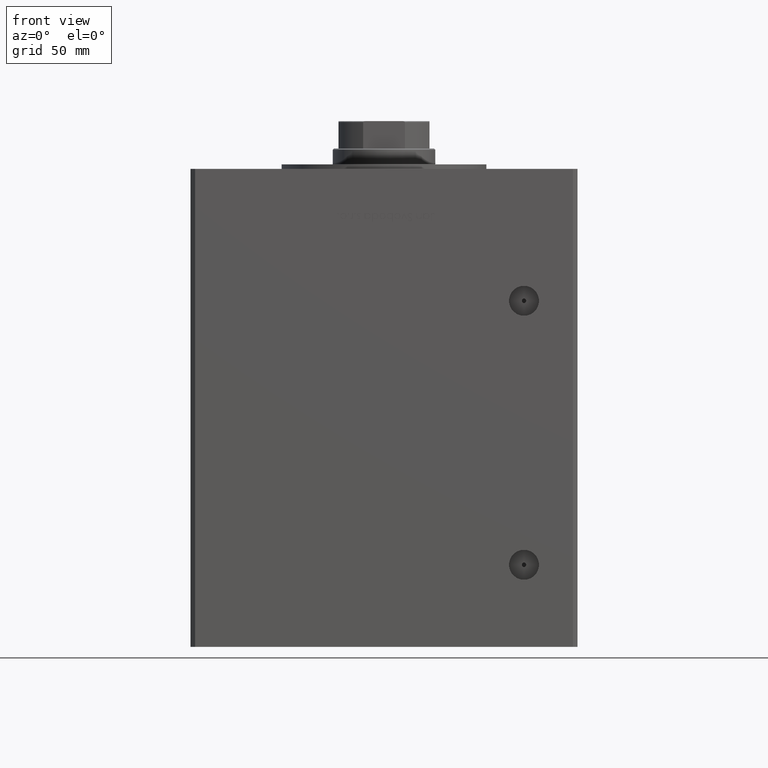
[diagram: clean part render]
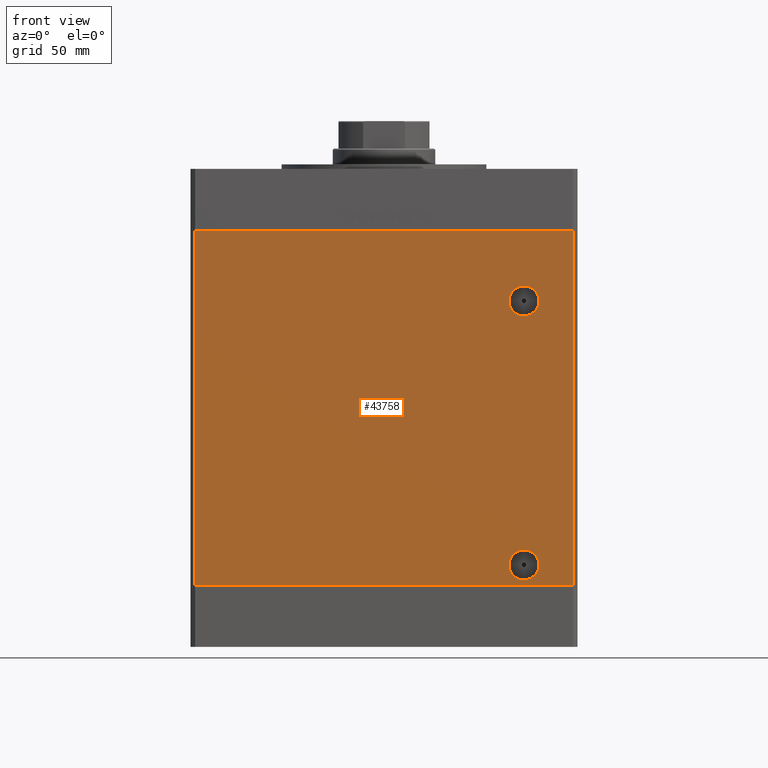
[diagram: same view with one face highlighted and labeled with its STEP entity id]
A machine part, front view. The second image highlights one B-rep face of the part: STEP entity #43758.
In plain terms, the highlighted planar face has unit normal (0, 1, 0).
Its self-contained STEP definition (entity closure, byte-faithful):
#397 = ORIENTED_EDGE ( 'NONE', *, *, #47307, .T. ) ;
#684 = CARTESIAN_POINT ( 'NONE',  ( -82.99999999999998579, -72.50000000000002842, 156.0000000000000000 ) ) ;
#1534 = CARTESIAN_POINT ( 'NONE',  ( 61.49999999999997868, -72.50000000000002842, 118.4200000000000159 ) ) ;
#2133 = CARTESIAN_POINT ( 'NONE',  ( -82.99999999999998579, -72.50000000000002842, 156.0000000000000000 ) ) ;
#2597 = EDGE_CURVE ( 'NONE', #51917, #20399, #12332, .T. ) ;
#3550 = CARTESIAN_POINT ( 'NONE',  ( 61.49999999999999289, -72.50000000000002842, 9.000000000000007105 ) ) ;
#4270 = CIRCLE ( 'NONE', #17726, 6.579999999999988525 ) ;
#4714 = DIRECTION ( 'NONE',  ( 0.000000000000000000, 0.000000000000000000, -1.000000000000000000 ) ) ;
#4985 = DIRECTION ( 'NONE',  ( -0.000000000000000000, 1.000000000000000000, -0.000000000000000000 ) ) ;
#6104 = VECTOR ( 'NONE', #20441, 1000.000000000000000 ) ;
#9159 = CARTESIAN_POINT ( 'NONE',  ( 82.99999999999998579, -72.50000000000002842, 156.0000000000000000 ) ) ;
#9516 = CIRCLE ( 'NONE', #38973, 6.579999999999994742 ) ;
#10164 = VECTOR ( 'NONE', #27906, 1000.000000000000000 ) ;
#10303 = EDGE_LOOP ( 'NONE', ( #397, #22168 ) ) ;
#10774 = FACE_BOUND ( 'NONE', #10303, .T. ) ;
#11469 = DIRECTION ( 'NONE',  ( 1.000000000000000000, 0.000000000000000000, 0.000000000000000000 ) ) ;
#12332 = LINE ( 'NONE', #24726, #10164 ) ;
#12574 = AXIS2_PLACEMENT_3D ( 'NONE', #18158, #49810, #14730 ) ;
#12982 = CARTESIAN_POINT ( 'NONE',  ( 61.49999999999999289, -72.50000000000002842, 15.58000000000000362 ) ) ;
#14730 = DIRECTION ( 'NONE',  ( 0.000000000000000000, -0.000000000000000000, 1.000000000000000000 ) ) ;
#15153 = VECTOR ( 'NONE', #26868, 1000.000000000000000 ) ;
#15927 = LINE ( 'NONE', #32271, #46041 ) ;
#17065 = CIRCLE ( 'NONE', #19595, 6.579999999999994742 ) ;
#17715 = VERTEX_POINT ( 'NONE', #48312 ) ;
#17726 = AXIS2_PLACEMENT_3D ( 'NONE', #38867, #43080, #50994 ) ;
#18158 = CARTESIAN_POINT ( 'NONE',  ( -82.99999999999998579, -72.50000000000002842, 156.0000000000000000 ) ) ;
#19238 = VERTEX_POINT ( 'NONE', #2133 ) ;
#19578 = EDGE_CURVE ( 'NONE', #34261, #20399, #15927, .T. ) ;
#19595 = AXIS2_PLACEMENT_3D ( 'NONE', #3550, #47281, #51767 ) ;
#20399 = VERTEX_POINT ( 'NONE', #48402 ) ;
#20441 = DIRECTION ( 'NONE',  ( 1.000000000000000000, 0.000000000000000000, 0.000000000000000000 ) ) ;
#20519 = ORIENTED_EDGE ( 'NONE', *, *, #19578, .T. ) ;
#21480 = ORIENTED_EDGE ( 'NONE', *, *, #41703, .F. ) ;
#22168 = ORIENTED_EDGE ( 'NONE', *, *, #33539, .T. ) ;
#24726 = CARTESIAN_POINT ( 'NONE',  ( 82.99999999999998579, -72.50000000000002842, 156.0000000000000000 ) ) ;
#24732 = DIRECTION ( 'NONE',  ( 0.000000000000000000, -1.000000000000000000, 0.000000000000000000 ) ) ;
#26074 = FACE_OUTER_BOUND ( 'NONE', #39864, .T. ) ;
#26868 = DIRECTION ( 'NONE',  ( -0.000000000000000000, -0.000000000000000000, -1.000000000000000000 ) ) ;
#27824 = ORIENTED_EDGE ( 'NONE', *, *, #40787, .F. ) ;
#27906 = DIRECTION ( 'NONE',  ( -0.000000000000000000, -0.000000000000000000, -1.000000000000000000 ) ) ;
#28969 = EDGE_CURVE ( 'NONE', #19238, #34261, #31346, .T. ) ;
#29433 = ORIENTED_EDGE ( 'NONE', *, *, #28969, .T. ) ;
#31153 = CARTESIAN_POINT ( 'NONE',  ( 61.49999999999999289, -72.50000000000002842, 2.420000000000013252 ) ) ;
#31346 = LINE ( 'NONE', #39254, #15153 ) ;
#31815 = VERTEX_POINT ( 'NONE', #1534 ) ;
#32271 = CARTESIAN_POINT ( 'NONE',  ( -82.99999999999998579, -72.50000000000002842, 0.000000000000000000 ) ) ;
#33539 = EDGE_CURVE ( 'NONE', #17715, #31815, #43778, .T. ) ;
#33666 = CARTESIAN_POINT ( 'NONE',  ( 61.49999999999999289, -72.50000000000002842, 9.000000000000007105 ) ) ;
#34261 = VERTEX_POINT ( 'NONE', #37092 ) ;
#34510 = AXIS2_PLACEMENT_3D ( 'NONE', #48716, #4985, #45295 ) ;
#35203 = EDGE_LOOP ( 'NONE', ( #27824, #21480 ) ) ;
#37092 = CARTESIAN_POINT ( 'NONE',  ( -82.99999999999998579, -72.50000000000002842, 0.000000000000000000 ) ) ;
#38200 = FACE_BOUND ( 'NONE', #35203, .T. ) ;
#38867 = CARTESIAN_POINT ( 'NONE',  ( 61.49999999999997868, -72.50000000000002842, 125.0000000000000000 ) ) ;
#38973 = AXIS2_PLACEMENT_3D ( 'NONE', #33666, #24732, #4714 ) ;
#38982 = PLANE ( 'NONE',  #12574 ) ;
#39254 = CARTESIAN_POINT ( 'NONE',  ( -82.99999999999998579, -72.50000000000002842, 156.0000000000000000 ) ) ;
#39864 = EDGE_LOOP ( 'NONE', ( #20519, #51479, #46165, #29433 ) ) ;
#40476 = EDGE_CURVE ( 'NONE', #19238, #51917, #44959, .T. ) ;
#40787 = EDGE_CURVE ( 'NONE', #42056, #51327, #17065, .T. ) ;
#41703 = EDGE_CURVE ( 'NONE', #51327, #42056, #9516, .T. ) ;
#42056 = VERTEX_POINT ( 'NONE', #31153 ) ;
#43080 = DIRECTION ( 'NONE',  ( -0.000000000000000000, 1.000000000000000000, -0.000000000000000000 ) ) ;
#43758 = ADVANCED_FACE ( 'NONE', ( #38200, #26074, #10774 ), #38982, .F. ) ;
#43778 = CIRCLE ( 'NONE', #34510, 6.579999999999988525 ) ;
#44959 = LINE ( 'NONE', #684, #6104 ) ;
#45295 = DIRECTION ( 'NONE',  ( 0.000000000000000000, 0.000000000000000000, -1.000000000000000000 ) ) ;
#46041 = VECTOR ( 'NONE', #11469, 1000.000000000000000 ) ;
#46165 = ORIENTED_EDGE ( 'NONE', *, *, #40476, .F. ) ;
#47281 = DIRECTION ( 'NONE',  ( 0.000000000000000000, -1.000000000000000000, 0.000000000000000000 ) ) ;
#47307 = EDGE_CURVE ( 'NONE', #31815, #17715, #4270, .T. ) ;
#48312 = CARTESIAN_POINT ( 'NONE',  ( 61.49999999999997868, -72.50000000000002842, 131.5800000000000125 ) ) ;
#48402 = CARTESIAN_POINT ( 'NONE',  ( 82.99999999999998579, -72.50000000000002842, 0.000000000000000000 ) ) ;
#48716 = CARTESIAN_POINT ( 'NONE',  ( 61.49999999999997868, -72.50000000000002842, 125.0000000000000000 ) ) ;
#49810 = DIRECTION ( 'NONE',  ( 0.000000000000000000, 1.000000000000000000, 0.000000000000000000 ) ) ;
#50994 = DIRECTION ( 'NONE',  ( 0.000000000000000000, 0.000000000000000000, -1.000000000000000000 ) ) ;
#51327 = VERTEX_POINT ( 'NONE', #12982 ) ;
#51479 = ORIENTED_EDGE ( 'NONE', *, *, #2597, .F. ) ;
#51767 = DIRECTION ( 'NONE',  ( 0.000000000000000000, 0.000000000000000000, -1.000000000000000000 ) ) ;
#51917 = VERTEX_POINT ( 'NONE', #9159 ) ;